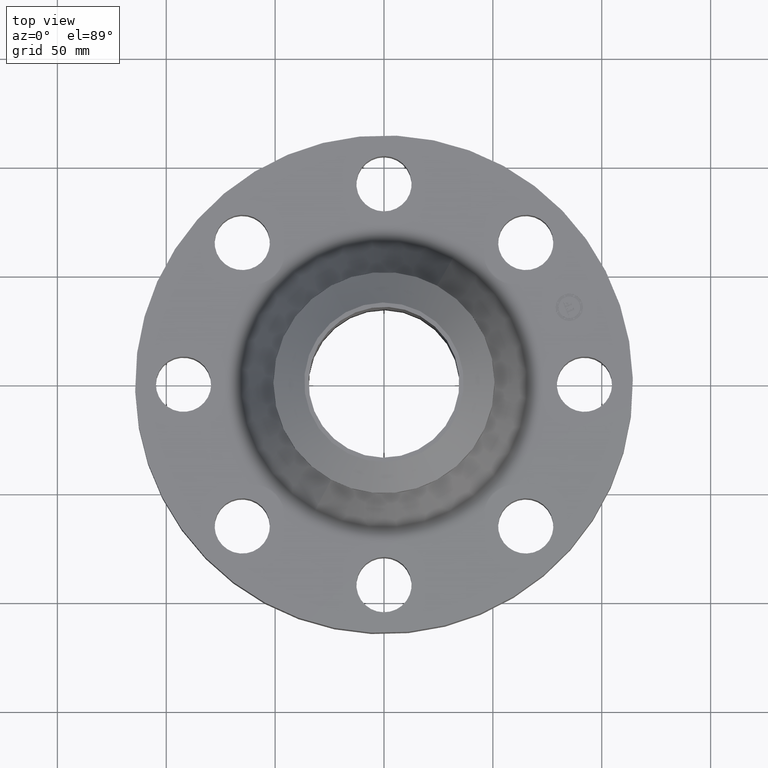
[diagram: clean part render]
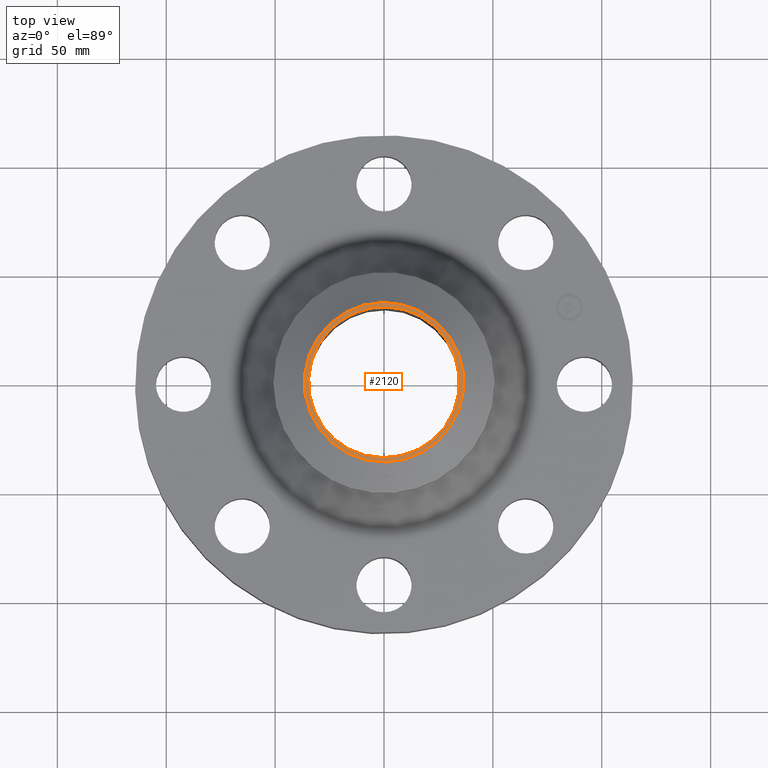
[diagram: same view with one face highlighted and labeled with its STEP entity id]
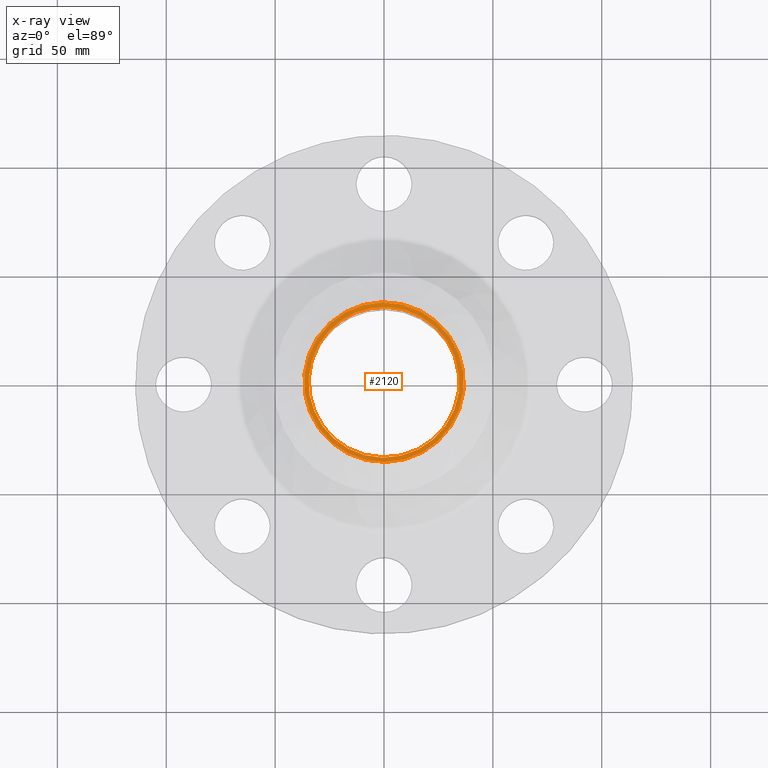
[diagram: x-ray of the same camera — body ghosted, the highlighted face saturated]
A machine part, top view. The second image highlights one B-rep face of the part: STEP entity #2120.
The next image is the same camera in x-ray: the body ghosted, the highlighted face saturated — about 0% of this face is hidden behind the body in this view.
In plain terms, the highlighted planar face has unit normal (0, 0, -1).
Its self-contained STEP definition (entity closure, byte-faithful):
#1390=AXIS2_PLACEMENT_3D('Circle Axis2P3D',#1388,#1389,$) ;
#2096=AXIS2_PLACEMENT_3D('Plane Axis2P3D',#2093,#2094,#2095) ;
#2100=AXIS2_PLACEMENT_3D('Circle Axis2P3D',#2098,#2099,$) ;
#2109=AXIS2_PLACEMENT_3D('Circle Axis2P3D',#2107,#2108,$) ;
#1388=CARTESIAN_POINT('Axis2P3D Location',(0.,0.,3.38)) ;
#1392=CARTESIAN_POINT('Vertex',(0.653936434661,1.19702261443,3.38)) ;
#1394=CARTESIAN_POINT('Vertex',(-0.653936434661,-1.19702261443,3.38)) ;
#1427=CARTESIAN_POINT('Control Point',(-0.653936434662,-1.19702261443,3.38)) ;
#1428=CARTESIAN_POINT('Control Point',(-0.841964307246,-1.09430251947,3.38)) ;
#1429=CARTESIAN_POINT('Control Point',(-1.00982313635,-0.954663238073,3.38)) ;
#1430=CARTESIAN_POINT('Control Point',(-1.1478148047,-0.783355499722,3.38)) ;
#1431=CARTESIAN_POINT('Control Point',(-1.34919316982,-0.395864060159,3.38)) ;
#1432=CARTESIAN_POINT('Control Point',(-1.3891016369,0.0390039381201,3.38)) ;
#1433=CARTESIAN_POINT('Control Point',(-1.36554361788,0.257711646016,3.38000000001)) ;
#1434=CARTESIAN_POINT('Control Point',(-1.23394180088,0.674105478142,3.38000000001)) ;
#1435=CARTESIAN_POINT('Control Point',(-0.954663238073,1.00982313635,3.38000000001)) ;
#1436=CARTESIAN_POINT('Control Point',(-0.783355499723,1.1478148047,3.38000000001)) ;
#1437=CARTESIAN_POINT('Control Point',(-0.39586406016,1.34919316982,3.38000000001)) ;
#1438=CARTESIAN_POINT('Control Point',(0.0390039381195,1.3891016369,3.38000000001)) ;
#1439=CARTESIAN_POINT('Control Point',(0.257711646015,1.36554361788,3.38000000001)) ;
#1440=CARTESIAN_POINT('Control Point',(0.465908562078,1.29974270938,3.38000000001)) ;
#1441=CARTESIAN_POINT('Control Point',(0.653936434661,1.19702261443,3.38000000001)) ;
#2093=CARTESIAN_POINT('Axis2P3D Location',(0.,2.00000000001,3.38000000001)) ;
#2098=CARTESIAN_POINT('Axis2P3D Location',(0.,-1.93329167198E-011,3.38000000001)) ;
#2102=CARTESIAN_POINT('Vertex',(0.69168647707,-1.26612360355,3.38000000001)) ;
#2104=CARTESIAN_POINT('Vertex',(-0.691686477071,1.26612360355,3.38000000001)) ;
#2107=CARTESIAN_POINT('Axis2P3D Location',(0.,-1.93329167198E-011,3.38000000001)) ;
#1389=DIRECTION('Axis2P3D Direction',(-0.,0.,-0.0393700787402)) ;
#2094=DIRECTION('Axis2P3D Direction',(0.,0.,-0.0393700787402)) ;
#2095=DIRECTION('Axis2P3D XDirection',(0.0393700787402,0.,0.)) ;
#2099=DIRECTION('Axis2P3D Direction',(0.,0.,-0.0393700787402)) ;
#2108=DIRECTION('Axis2P3D Direction',(0.,0.,-0.0393700787402)) ;
#2113=ORIENTED_EDGE('',*,*,#2106,.T.) ;
#2114=ORIENTED_EDGE('',*,*,#2111,.T.) ;
#2117=ORIENTED_EDGE('',*,*,#1442,.T.) ;
#2118=ORIENTED_EDGE('',*,*,#1396,.T.) ;
#2119=FACE_BOUND('',#2116,.T.) ;
#2120=ADVANCED_FACE('PartBody',(#2115,#2119),#2097,.F.) ;
#1426=B_SPLINE_CURVE_WITH_KNOTS('',5,(#1427,#1428,#1429,#1430,#1431,#1432,#1433,#1434,#1435,#1436,#1437,#1438,#1439,#1440,#1441),.UNSPECIFIED.,.F.,.U.,(6,3,3,3,6),(-54.42118122,-27.21059061,3.5527136788E-015,27.21059061,54.42118122),.UNSPECIFIED.) ;
#1391=CIRCLE('generated circle',#1390,1.36400000001) ;
#2101=CIRCLE('generated circle',#2100,1.44274015748) ;
#2110=CIRCLE('generated circle',#2109,1.44274015748) ;
#1396=EDGE_CURVE('',#1393,#1395,#1391,.T.) ;
#1442=EDGE_CURVE('',#1395,#1393,#1426,.T.) ;
#2106=EDGE_CURVE('',#2103,#2105,#2101,.F.) ;
#2111=EDGE_CURVE('',#2105,#2103,#2110,.F.) ;
#2112=EDGE_LOOP('',(#2113,#2114)) ;
#2116=EDGE_LOOP('',(#2117,#2118)) ;
#2115=FACE_OUTER_BOUND('',#2112,.T.) ;
#2097=PLANE('',#2096) ;
#1393=VERTEX_POINT('',#1392) ;
#1395=VERTEX_POINT('',#1394) ;
#2103=VERTEX_POINT('',#2102) ;
#2105=VERTEX_POINT('',#2104) ;